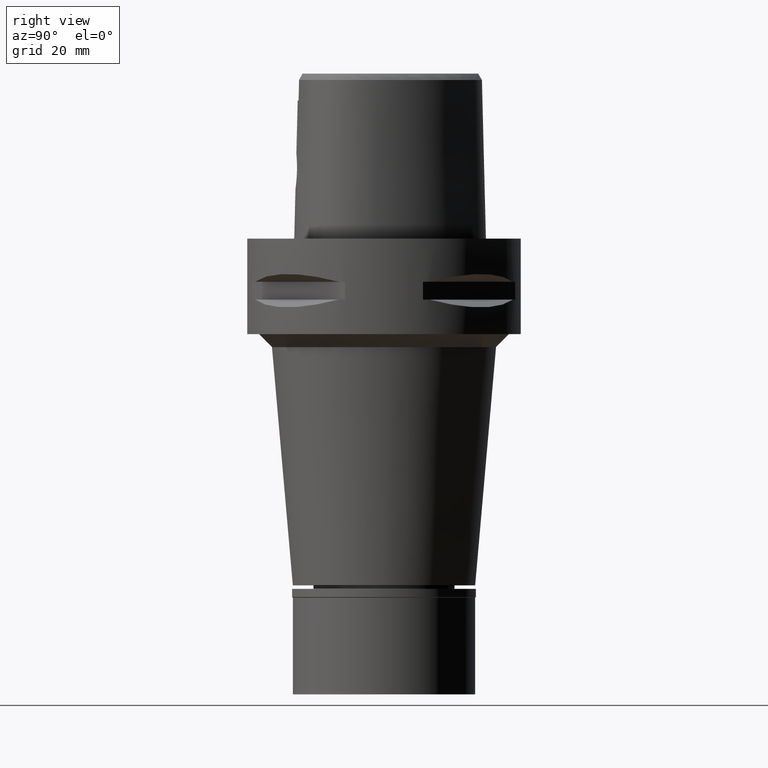
[diagram: clean part render]
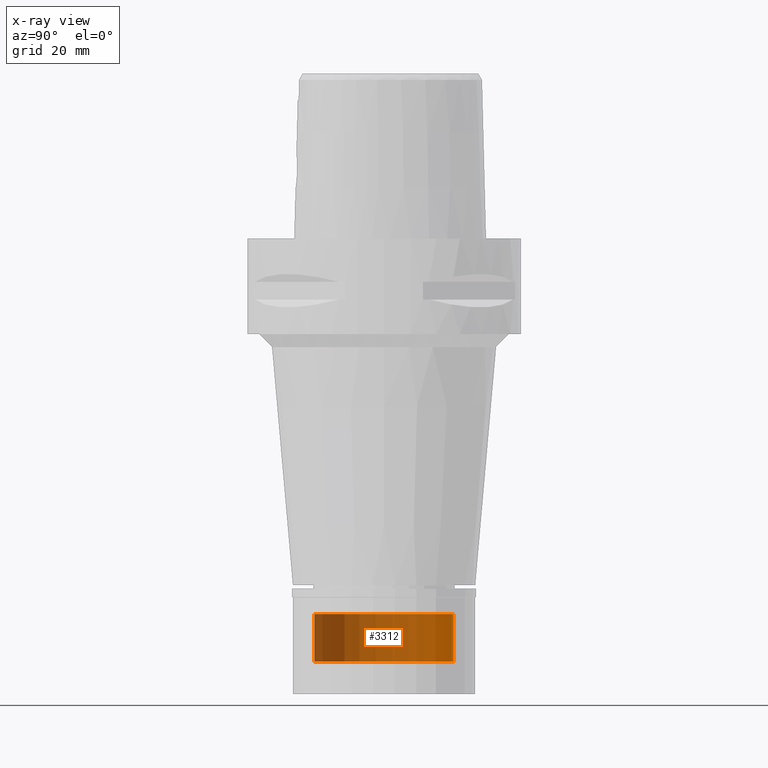
[diagram: x-ray — body ghosted, one internal face saturated and labeled with its STEP entity id]
A machine part, right view, then the same camera in x-ray: the body is ghosted and one INTERNAL B-rep face — a face not visible from any outside direction — is saturated and labeled: STEP entity #3312.
In plain terms, the highlighted cylindrical surface (partial cylindrical patch) has radius 16 mm, axis along (0, 0, -1).
Its self-contained STEP definition (entity closure, byte-faithful):
#203 = DIRECTION ( 'NONE',  ( 0.0000000000000000000, -1.000000000000000000, 0.0000000000000000000 ) ) ;
#550 = CARTESIAN_POINT ( 'NONE',  ( 0.0000000000000000000, -16.00000000000000000, -86.50000000000000000 ) ) ;
#634 = FACE_OUTER_BOUND ( 'NONE', #3571, .T. ) ;
#680 = VERTEX_POINT ( 'NONE', #2348 ) ;
#749 = LINE ( 'NONE', #4259, #1581 ) ;
#854 = AXIS2_PLACEMENT_3D ( 'NONE', #2983, #1424, #1854 ) ;
#895 = LINE ( 'NONE', #2415, #1700 ) ;
#1026 = EDGE_CURVE ( 'NONE', #680, #4206, #895, .T. ) ;
#1315 = DIRECTION ( 'NONE',  ( 0.0000000000000000000, 0.0000000000000000000, 1.000000000000000000 ) ) ;
#1424 = DIRECTION ( 'NONE',  ( 0.0000000000000000000, 0.0000000000000000000, -1.000000000000000000 ) ) ;
#1581 = VECTOR ( 'NONE', #2654, 1000.000000000000000 ) ;
#1582 = VERTEX_POINT ( 'NONE', #3058 ) ;
#1700 = VECTOR ( 'NONE', #4325, 1000.000000000000000 ) ;
#1828 = CYLINDRICAL_SURFACE ( 'NONE', #854, 16.00000000000000000 ) ;
#1854 = DIRECTION ( 'NONE',  ( 0.0000000000000000000, -1.000000000000000000, 0.0000000000000000000 ) ) ;
#2114 = CIRCLE ( 'NONE', #4909, 16.00000000000000000 ) ;
#2122 = ORIENTED_EDGE ( 'NONE', *, *, #2550, .T. ) ;
#2125 = ORIENTED_EDGE ( 'NONE', *, *, #3827, .F. ) ;
#2348 = CARTESIAN_POINT ( 'NONE',  ( 0.0000000000000000000, 16.00000000000000000, -86.50000000000000000 ) ) ;
#2415 = CARTESIAN_POINT ( 'NONE',  ( 0.0000000000000000000, 16.00000000000000000, -86.50000000000000000 ) ) ;
#2465 = ORIENTED_EDGE ( 'NONE', *, *, #4083, .T. ) ;
#2550 = EDGE_CURVE ( 'NONE', #3471, #680, #4634, .T. ) ;
#2613 = DIRECTION ( 'NONE',  ( 0.0000000000000000000, 0.0000000000000000000, -1.000000000000000000 ) ) ;
#2654 = DIRECTION ( 'NONE',  ( 0.0000000000000000000, 0.0000000000000000000, -1.000000000000000000 ) ) ;
#2803 = CARTESIAN_POINT ( 'NONE',  ( 0.0000000000000000000, 16.00000000000000000, -97.50000000000000000 ) ) ;
#2827 = DIRECTION ( 'NONE',  ( 0.0000000000000000000, 1.000000000000000000, 0.0000000000000000000 ) ) ;
#2983 = CARTESIAN_POINT ( 'NONE',  ( 0.0000000000000000000, 1.284348330606000068E-14, 4.875000000000000000 ) ) ;
#3058 = CARTESIAN_POINT ( 'NONE',  ( 0.0000000000000000000, -16.00000000000000000, -97.50000000000000000 ) ) ;
#3312 = ADVANCED_FACE ( 'NONE', ( #634 ), #1828, .T. ) ;
#3385 = ORIENTED_EDGE ( 'NONE', *, *, #1026, .T. ) ;
#3471 = VERTEX_POINT ( 'NONE', #550 ) ;
#3528 = CARTESIAN_POINT ( 'NONE',  ( 0.0000000000000000000, 1.284348330606000068E-14, -97.50000000000000000 ) ) ;
#3571 = EDGE_LOOP ( 'NONE', ( #2465, #2125, #2122, #3385 ) ) ;
#3642 = CARTESIAN_POINT ( 'NONE',  ( 0.0000000000000000000, 1.284348330606000068E-14, -86.50000000000000000 ) ) ;
#3827 = EDGE_CURVE ( 'NONE', #3471, #1582, #749, .T. ) ;
#4083 = EDGE_CURVE ( 'NONE', #4206, #1582, #2114, .T. ) ;
#4206 = VERTEX_POINT ( 'NONE', #2803 ) ;
#4259 = CARTESIAN_POINT ( 'NONE',  ( 0.0000000000000000000, -16.00000000000000000, -86.50000000000000000 ) ) ;
#4325 = DIRECTION ( 'NONE',  ( 0.0000000000000000000, 0.0000000000000000000, -1.000000000000000000 ) ) ;
#4634 = CIRCLE ( 'NONE', #4795, 16.00000000000000000 ) ;
#4795 = AXIS2_PLACEMENT_3D ( 'NONE', #3642, #2613, #203 ) ;
#4909 = AXIS2_PLACEMENT_3D ( 'NONE', #3528, #1315, #2827 ) ;